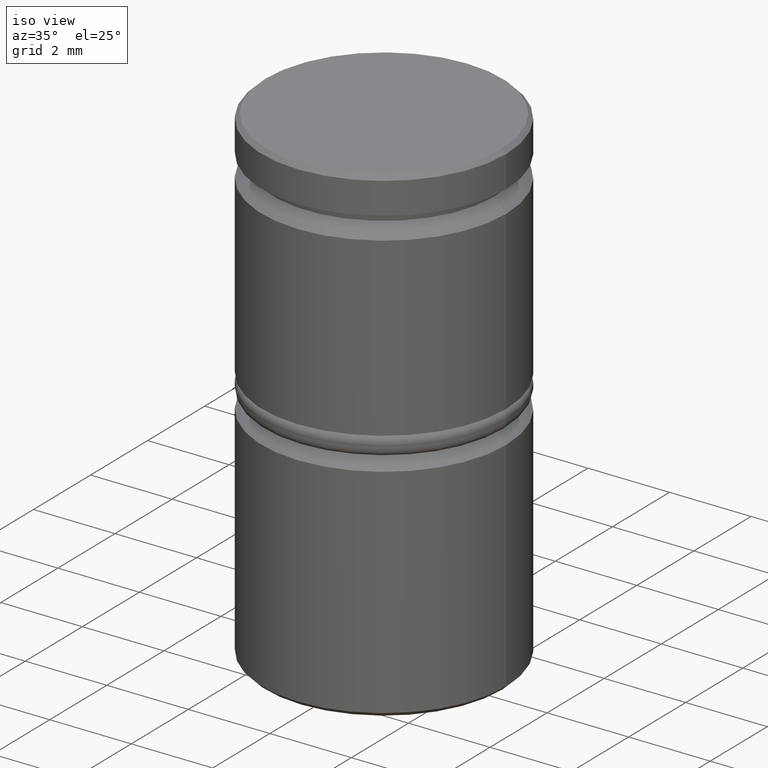
[diagram: clean part render]
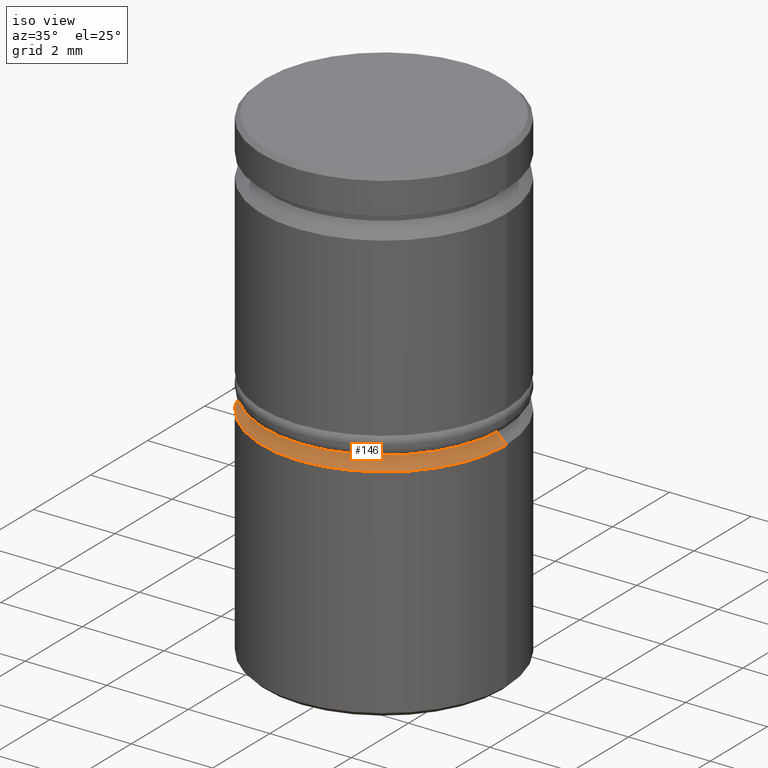
[diagram: same view with one face highlighted and labeled with its STEP entity id]
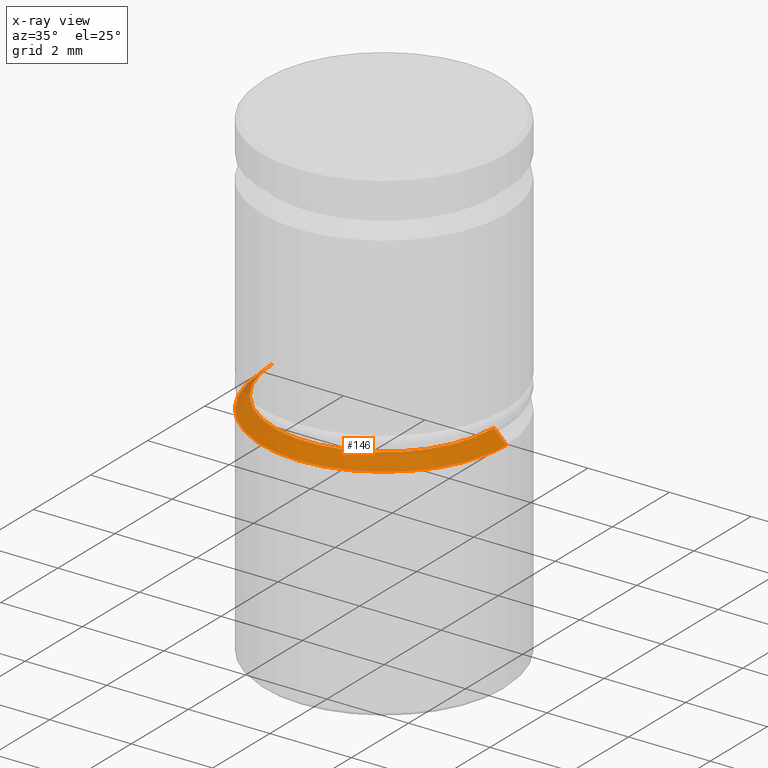
[diagram: x-ray of the same camera — body ghosted, the highlighted face saturated]
A machine part, iso view. The second image highlights one B-rep face of the part: STEP entity #146.
The next image is the same camera in x-ray: the body ghosted, the highlighted face saturated — about 2% of this face is hidden behind the body in this view.
In plain terms, the highlighted conical surface has half-angle 45 deg.
Its self-contained STEP definition (entity closure, byte-faithful):
#46 = ORIENTED_EDGE ( 'NONE', *, *, #1036, .F. ) ;
#104 = CONICAL_SURFACE ( 'NONE', #886, 2.700000000000005063, 0.7853981633974460586 ) ;
#146 = ADVANCED_FACE ( 'NONE', ( #173 ), #104, .T. ) ;
#173 = FACE_OUTER_BOUND ( 'NONE', #402, .T. ) ;
#190 = LINE ( 'NONE', #1114, #1082 ) ;
#205 = DIRECTION ( 'NONE',  ( 0.000000000000000000, 0.000000000000000000, -1.000000000000000000 ) ) ;
#213 = AXIS2_PLACEMENT_3D ( 'NONE', #343, #274, #429 ) ;
#231 = CARTESIAN_POINT ( 'NONE',  ( 2.700000000000000178, 0.000000000000000000, -6.250000000000000000 ) ) ;
#250 = CARTESIAN_POINT ( 'NONE',  ( -2.700000000000005063, 0.000000000000000000, -6.250000000000000000 ) ) ;
#274 = DIRECTION ( 'NONE',  ( -0.000000000000000000, -0.000000000000000000, 1.000000000000000000 ) ) ;
#313 = CARTESIAN_POINT ( 'NONE',  ( 0.000000000000000000, 0.000000000000000000, -6.250000000000000000 ) ) ;
#343 = CARTESIAN_POINT ( 'NONE',  ( 0.000000000000000000, 0.000000000000000000, -6.250000000000000000 ) ) ;
#352 = EDGE_CURVE ( 'NONE', #1038, #1135, #986, .T. ) ;
#402 = EDGE_LOOP ( 'NONE', ( #980, #1058, #588, #46 ) ) ;
#412 = VERTEX_POINT ( 'NONE', #450 ) ;
#429 = DIRECTION ( 'NONE',  ( 1.000000000000000000, 0.000000000000000000, 0.000000000000000000 ) ) ;
#450 = CARTESIAN_POINT ( 'NONE',  ( 3.000000000000000000, 0.000000000000000000, -6.549999999999997158 ) ) ;
#504 = CARTESIAN_POINT ( 'NONE',  ( 0.000000000000000000, 0.000000000000000000, -6.549999999999997158 ) ) ;
#527 = EDGE_CURVE ( 'NONE', #1135, #412, #190, .T. ) ;
#539 = AXIS2_PLACEMENT_3D ( 'NONE', #504, #205, #679 ) ;
#588 = ORIENTED_EDGE ( 'NONE', *, *, #778, .T. ) ;
#633 = CARTESIAN_POINT ( 'NONE',  ( -3.000000000000000000, 3.673940397442059868E-16, -6.549999999999997158 ) ) ;
#660 = VERTEX_POINT ( 'NONE', #633 ) ;
#679 = DIRECTION ( 'NONE',  ( 1.000000000000000000, 0.000000000000000000, 0.000000000000000000 ) ) ;
#697 = VECTOR ( 'NONE', #1162, 1000.000000000000114 ) ;
#778 = EDGE_CURVE ( 'NONE', #1038, #660, #1067, .T. ) ;
#785 = CARTESIAN_POINT ( 'NONE',  ( -2.700000000000000178, 3.306546357697853733E-16, -6.250000000000000000 ) ) ;
#886 = AXIS2_PLACEMENT_3D ( 'NONE', #313, #976, #954 ) ;
#905 = CIRCLE ( 'NONE', #539, 3.000000000000000000 ) ;
#954 = DIRECTION ( 'NONE',  ( -1.000000000000000000, 0.000000000000000000, 0.000000000000000000 ) ) ;
#976 = DIRECTION ( 'NONE',  ( 0.000000000000000000, 0.000000000000000000, -1.000000000000000000 ) ) ;
#980 = ORIENTED_EDGE ( 'NONE', *, *, #527, .F. ) ;
#986 = CIRCLE ( 'NONE', #213, 2.700000000000000178 ) ;
#1036 = EDGE_CURVE ( 'NONE', #412, #660, #905, .T. ) ;
#1038 = VERTEX_POINT ( 'NONE', #785 ) ;
#1058 = ORIENTED_EDGE ( 'NONE', *, *, #352, .F. ) ;
#1067 = LINE ( 'NONE', #250, #697 ) ;
#1082 = VECTOR ( 'NONE', #1106, 1000.000000000000114 ) ;
#1106 = DIRECTION ( 'NONE',  ( 0.7071067811865460184, 8.659560562354913137E-17, -0.7071067811865490160 ) ) ;
#1114 = CARTESIAN_POINT ( 'NONE',  ( 2.700000000000005063, 3.306546357697859650E-16, -6.250000000000000000 ) ) ;
#1135 = VERTEX_POINT ( 'NONE', #231 ) ;
#1162 = DIRECTION ( 'NONE',  ( -0.7071067811865460184, 0.000000000000000000, -0.7071067811865490160 ) ) ;